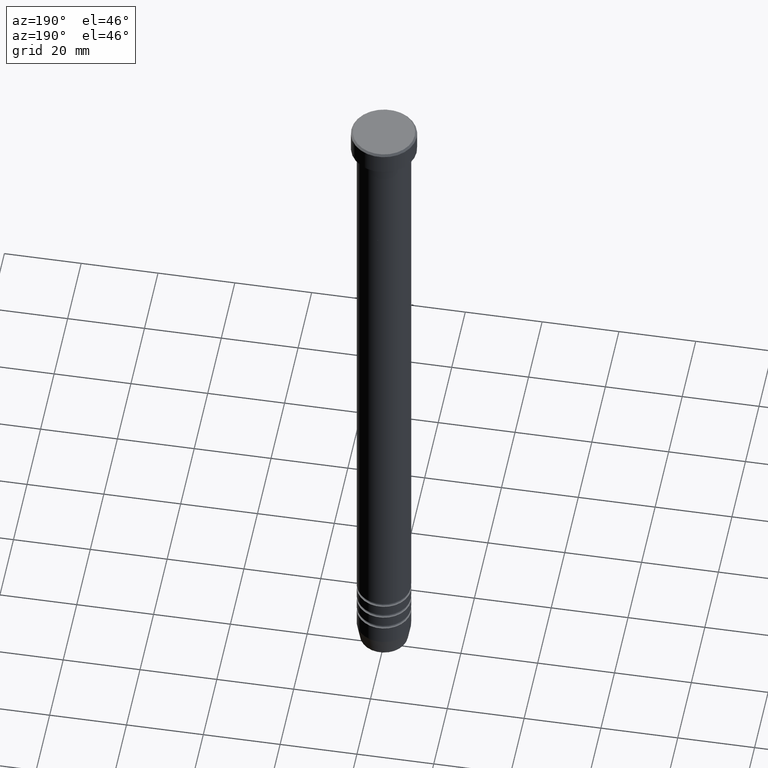
[diagram: clean part render]
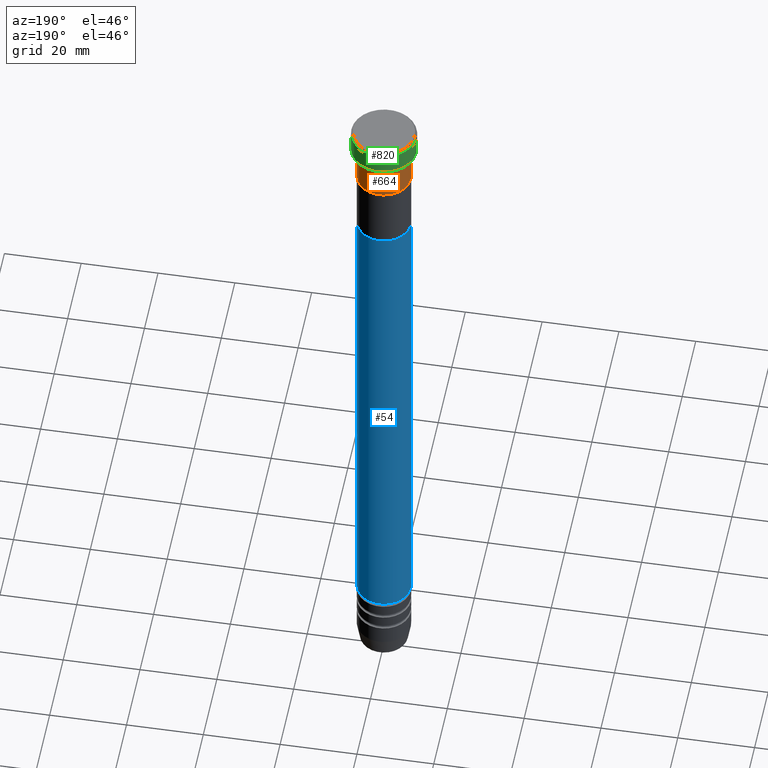
[diagram: same view with three faces highlighted in distinct colors, each labeled with its STEP entity id]
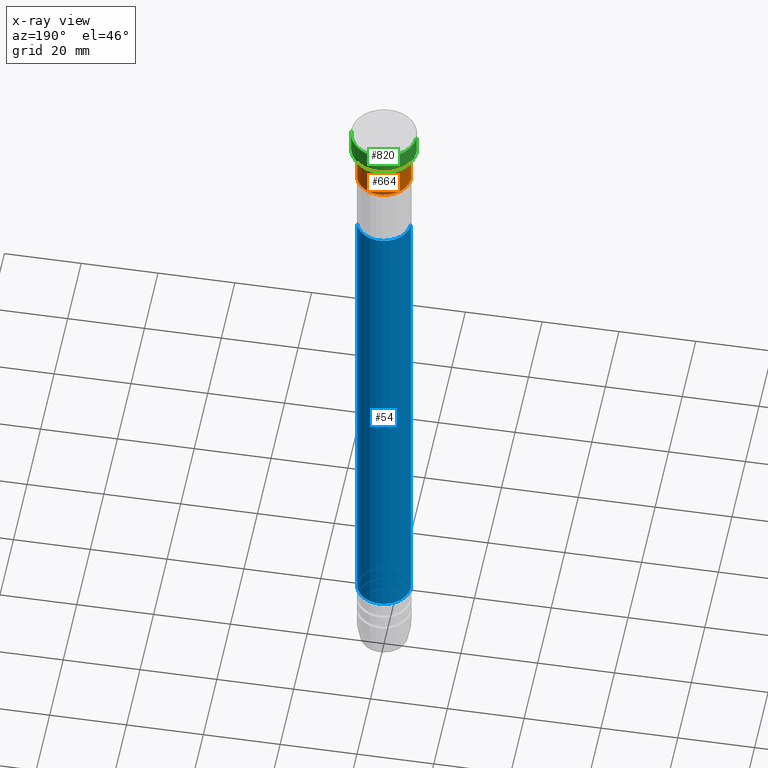
[diagram: x-ray of the same camera — body ghosted, the three highlighted faces saturated]
A machine part, auxiliary view with three faces highlighted in distinct colors.
The next image is the same camera in x-ray (body ghosted, the three faces saturated) — at least one of them is partly hidden behind the body in this view.
Their STEP definitions:

[orange] entity #664 — the highlighted cylindrical surface (edge-blend (fillet) strip) has radius 7 mm, axis along (-0, -0, 1).
#29 = AXIS2_PLACEMENT_3D ( 'NONE', #717, #143, #402 ) ;
#42 = CIRCLE ( 'NONE', #242, 7.000000000000000000 ) ;
#44 = EDGE_CURVE ( 'NONE', #896, #1146, #401, .T. ) ;
#55 = VECTOR ( 'NONE', #708, 1000.000000000000000 ) ;
#57 = CARTESIAN_POINT ( 'NONE',  ( 0.000000000000000000, 0.000000000000000000, -7.000000000000000888 ) ) ;
#143 = DIRECTION ( 'NONE',  ( -0.000000000000000000, -0.000000000000000000, 1.000000000000000000 ) ) ;
#153 = EDGE_CURVE ( 'NONE', #1024, #698, #42, .T. ) ;
#162 = AXIS2_PLACEMENT_3D ( 'NONE', #573, #246, #168 ) ;
#168 = DIRECTION ( 'NONE',  ( 1.000000000000000000, 0.000000000000000000, 0.000000000000000000 ) ) ;
#198 = DIRECTION ( 'NONE',  ( 1.000000000000000000, 0.000000000000000000, 0.000000000000000000 ) ) ;
#206 = CARTESIAN_POINT ( 'NONE',  ( 7.000000000000000000, 0.000000000000000000, -7.000000000000000888 ) ) ;
#219 = LINE ( 'NONE', #562, #408 ) ;
#223 = EDGE_CURVE ( 'NONE', #1146, #698, #366, .T. ) ;
#242 = AXIS2_PLACEMENT_3D ( 'NONE', #57, #352, #198 ) ;
#246 = DIRECTION ( 'NONE',  ( -0.000000000000000000, -0.000000000000000000, 1.000000000000000000 ) ) ;
#352 = DIRECTION ( 'NONE',  ( -0.000000000000000000, -0.000000000000000000, 1.000000000000000000 ) ) ;
#353 = ORIENTED_EDGE ( 'NONE', *, *, #884, .F. ) ;
#366 = LINE ( 'NONE', #429, #55 ) ;
#385 = CARTESIAN_POINT ( 'NONE',  ( 7.000000000000000000, 0.000000000000000000, -16.00000000000000000 ) ) ;
#401 = CIRCLE ( 'NONE', #29, 7.000000000000000000 ) ;
#402 = DIRECTION ( 'NONE',  ( 1.000000000000000000, 0.000000000000000000, 0.000000000000000000 ) ) ;
#408 = VECTOR ( 'NONE', #535, 1000.000000000000000 ) ;
#429 = CARTESIAN_POINT ( 'NONE',  ( -7.000000000000000000, 8.572527594031473190E-16, 0.000000000000000000 ) ) ;
#500 = ORIENTED_EDGE ( 'NONE', *, *, #44, .T. ) ;
#522 = EDGE_LOOP ( 'NONE', ( #500, #985, #955, #353 ) ) ;
#535 = DIRECTION ( 'NONE',  ( -0.000000000000000000, -0.000000000000000000, 1.000000000000000000 ) ) ;
#548 = CARTESIAN_POINT ( 'NONE',  ( -7.000000000000000000, 8.572527594031473190E-16, -16.00000000000000000 ) ) ;
#562 = CARTESIAN_POINT ( 'NONE',  ( 7.000000000000000000, 0.000000000000000000, 0.000000000000000000 ) ) ;
#573 = CARTESIAN_POINT ( 'NONE',  ( 0.000000000000000000, 0.000000000000000000, 0.000000000000000000 ) ) ;
#660 = CYLINDRICAL_SURFACE ( 'NONE', #162, 7.000000000000000000 ) ;
#664 = ADVANCED_FACE ( 'NONE', ( #677 ), #660, .T. ) ;
#677 = FACE_OUTER_BOUND ( 'NONE', #522, .T. ) ;
#698 = VERTEX_POINT ( 'NONE', #1057 ) ;
#708 = DIRECTION ( 'NONE',  ( -0.000000000000000000, -0.000000000000000000, 1.000000000000000000 ) ) ;
#717 = CARTESIAN_POINT ( 'NONE',  ( 0.000000000000000000, 0.000000000000000000, -16.00000000000000000 ) ) ;
#884 = EDGE_CURVE ( 'NONE', #896, #1024, #219, .T. ) ;
#896 = VERTEX_POINT ( 'NONE', #385 ) ;
#955 = ORIENTED_EDGE ( 'NONE', *, *, #153, .F. ) ;
#985 = ORIENTED_EDGE ( 'NONE', *, *, #223, .T. ) ;
#1024 = VERTEX_POINT ( 'NONE', #206 ) ;
#1057 = CARTESIAN_POINT ( 'NONE',  ( -7.000000000000000000, 8.572527594031473190E-16, -7.000000000000000888 ) ) ;
#1146 = VERTEX_POINT ( 'NONE', #548 ) ;

[blue] entity #54 — the highlighted cylindrical surface (edge-blend (fillet) strip) has radius 7 mm, axis along (-0, -0, 1).
#37 = VECTOR ( 'NONE', #733, 1000.000000000000000 ) ;
#53 = VERTEX_POINT ( 'NONE', #657 ) ;
#54 = ADVANCED_FACE ( 'NONE', ( #630 ), #398, .T. ) ;
#70 = AXIS2_PLACEMENT_3D ( 'NONE', #369, #438, #1145 ) ;
#108 = VERTEX_POINT ( 'NONE', #447 ) ;
#128 = DIRECTION ( 'NONE',  ( -0.000000000000000000, -0.000000000000000000, 1.000000000000000000 ) ) ;
#130 = DIRECTION ( 'NONE',  ( -0.000000000000000000, -0.000000000000000000, 1.000000000000000000 ) ) ;
#144 = ORIENTED_EDGE ( 'NONE', *, *, #1068, .F. ) ;
#155 = CARTESIAN_POINT ( 'NONE',  ( 7.000000000000000000, 0.000000000000000000, -33.00000000000000000 ) ) ;
#220 = ORIENTED_EDGE ( 'NONE', *, *, #625, .T. ) ;
#249 = CARTESIAN_POINT ( 'NONE',  ( -6.999999999999995559, 8.572527594031467273E-16, 0.000000000000000000 ) ) ;
#275 = LINE ( 'NONE', #621, #37 ) ;
#310 = DIRECTION ( 'NONE',  ( 1.000000000000000000, 0.000000000000000000, 0.000000000000000000 ) ) ;
#369 = CARTESIAN_POINT ( 'NONE',  ( 0.000000000000000000, 0.000000000000000000, -33.00000000000000000 ) ) ;
#398 = CYLINDRICAL_SURFACE ( 'NONE', #735, 6.999999999999995559 ) ;
#438 = DIRECTION ( 'NONE',  ( -0.000000000000000000, -0.000000000000000000, 1.000000000000000000 ) ) ;
#447 = CARTESIAN_POINT ( 'NONE',  ( 6.999999999999991118, 0.000000000000000000, -167.0000000000000000 ) ) ;
#460 = EDGE_LOOP ( 'NONE', ( #853, #220, #144, #1055 ) ) ;
#476 = DIRECTION ( 'NONE',  ( 1.000000000000000000, 0.000000000000000000, 0.000000000000000000 ) ) ;
#506 = DIRECTION ( 'NONE',  ( -0.000000000000000000, -0.000000000000000000, 1.000000000000000000 ) ) ;
#561 = EDGE_CURVE ( 'NONE', #108, #53, #860, .T. ) ;
#621 = CARTESIAN_POINT ( 'NONE',  ( 6.999999999999995559, 0.000000000000000000, 0.000000000000000000 ) ) ;
#625 = EDGE_CURVE ( 'NONE', #53, #1139, #681, .T. ) ;
#630 = FACE_OUTER_BOUND ( 'NONE', #460, .T. ) ;
#657 = CARTESIAN_POINT ( 'NONE',  ( -6.999999999999991118, 8.572527594031464315E-16, -167.0000000000000000 ) ) ;
#681 = LINE ( 'NONE', #249, #842 ) ;
#733 = DIRECTION ( 'NONE',  ( -0.000000000000000000, -0.000000000000000000, 1.000000000000000000 ) ) ;
#735 = AXIS2_PLACEMENT_3D ( 'NONE', #995, #130, #310 ) ;
#842 = VECTOR ( 'NONE', #506, 1000.000000000000000 ) ;
#853 = ORIENTED_EDGE ( 'NONE', *, *, #561, .T. ) ;
#860 = CIRCLE ( 'NONE', #1081, 6.999999999999991118 ) ;
#925 = VERTEX_POINT ( 'NONE', #155 ) ;
#978 = CARTESIAN_POINT ( 'NONE',  ( -7.000000000000000000, 8.572527594031473190E-16, -33.00000000000000000 ) ) ;
#981 = CARTESIAN_POINT ( 'NONE',  ( 0.000000000000000000, 0.000000000000000000, -167.0000000000000000 ) ) ;
#995 = CARTESIAN_POINT ( 'NONE',  ( 0.000000000000000000, 0.000000000000000000, 0.000000000000000000 ) ) ;
#1029 = EDGE_CURVE ( 'NONE', #108, #925, #275, .T. ) ;
#1055 = ORIENTED_EDGE ( 'NONE', *, *, #1029, .F. ) ;
#1068 = EDGE_CURVE ( 'NONE', #925, #1139, #1125, .T. ) ;
#1081 = AXIS2_PLACEMENT_3D ( 'NONE', #981, #128, #476 ) ;
#1125 = CIRCLE ( 'NONE', #70, 7.000000000000000000 ) ;
#1139 = VERTEX_POINT ( 'NONE', #978 ) ;
#1145 = DIRECTION ( 'NONE',  ( 1.000000000000000000, 0.000000000000000000, 0.000000000000000000 ) ) ;

[green] entity #820 — the highlighted cylindrical surface (edge-blend (fillet) strip) has radius 8.5 mm, axis along (-0, -0, 1).
#3 = CARTESIAN_POINT ( 'NONE',  ( 8.500000000000000000, 0.000000000000000000, -6.000000000000000000 ) ) ;
#19 = CARTESIAN_POINT ( 'NONE',  ( -8.500000000000000000, 1.040949779275250140E-15, 0.000000000000000000 ) ) ;
#72 = VERTEX_POINT ( 'NONE', #3 ) ;
#74 = VERTEX_POINT ( 'NONE', #663 ) ;
#78 = DIRECTION ( 'NONE',  ( -0.000000000000000000, -0.000000000000000000, 1.000000000000000000 ) ) ;
#125 = VECTOR ( 'NONE', #78, 1000.000000000000000 ) ;
#227 = CARTESIAN_POINT ( 'NONE',  ( 0.000000000000000000, 0.000000000000000000, -0.4999999999999952260 ) ) ;
#244 = EDGE_CURVE ( 'NONE', #72, #946, #268, .T. ) ;
#253 = ORIENTED_EDGE ( 'NONE', *, *, #501, .T. ) ;
#268 = LINE ( 'NONE', #856, #125 ) ;
#403 = EDGE_CURVE ( 'NONE', #616, #74, #892, .T. ) ;
#421 = ORIENTED_EDGE ( 'NONE', *, *, #403, .T. ) ;
#435 = DIRECTION ( 'NONE',  ( -0.000000000000000000, -0.000000000000000000, 1.000000000000000000 ) ) ;
#440 = AXIS2_PLACEMENT_3D ( 'NONE', #627, #721, #1070 ) ;
#497 = CARTESIAN_POINT ( 'NONE',  ( -8.500000000000000000, 1.040949779275250140E-15, -6.000000000000000000 ) ) ;
#501 = EDGE_CURVE ( 'NONE', #72, #616, #956, .T. ) ;
#551 = DIRECTION ( 'NONE',  ( 1.000000000000000000, 0.000000000000000000, 0.000000000000000000 ) ) ;
#568 = VECTOR ( 'NONE', #731, 1000.000000000000000 ) ;
#569 = DIRECTION ( 'NONE',  ( 0.000000000000000000, 0.000000000000000000, -1.000000000000000000 ) ) ;
#579 = EDGE_CURVE ( 'NONE', #74, #946, #1000, .T. ) ;
#611 = EDGE_LOOP ( 'NONE', ( #253, #421, #777, #1127 ) ) ;
#616 = VERTEX_POINT ( 'NONE', #497 ) ;
#627 = CARTESIAN_POINT ( 'NONE',  ( 0.000000000000000000, 0.000000000000000000, 0.000000000000000000 ) ) ;
#663 = CARTESIAN_POINT ( 'NONE',  ( -8.500000000000000000, 1.040949779275250140E-15, -0.4999999999999952260 ) ) ;
#721 = DIRECTION ( 'NONE',  ( -0.000000000000000000, -0.000000000000000000, 1.000000000000000000 ) ) ;
#730 = AXIS2_PLACEMENT_3D ( 'NONE', #861, #435, #784 ) ;
#731 = DIRECTION ( 'NONE',  ( -0.000000000000000000, -0.000000000000000000, 1.000000000000000000 ) ) ;
#739 = FACE_OUTER_BOUND ( 'NONE', #611, .T. ) ;
#754 = CARTESIAN_POINT ( 'NONE',  ( 8.500000000000000000, 0.000000000000000000, -0.4999999999999952260 ) ) ;
#777 = ORIENTED_EDGE ( 'NONE', *, *, #579, .T. ) ;
#784 = DIRECTION ( 'NONE',  ( 1.000000000000000000, 0.000000000000000000, 0.000000000000000000 ) ) ;
#820 = ADVANCED_FACE ( 'NONE', ( #739 ), #1092, .T. ) ;
#829 = AXIS2_PLACEMENT_3D ( 'NONE', #227, #569, #551 ) ;
#856 = CARTESIAN_POINT ( 'NONE',  ( 8.500000000000000000, 0.000000000000000000, 0.000000000000000000 ) ) ;
#861 = CARTESIAN_POINT ( 'NONE',  ( 0.000000000000000000, 0.000000000000000000, -6.000000000000000000 ) ) ;
#892 = LINE ( 'NONE', #19, #568 ) ;
#946 = VERTEX_POINT ( 'NONE', #754 ) ;
#956 = CIRCLE ( 'NONE', #730, 8.500000000000000000 ) ;
#1000 = CIRCLE ( 'NONE', #829, 8.500000000000000000 ) ;
#1070 = DIRECTION ( 'NONE',  ( 1.000000000000000000, 0.000000000000000000, 0.000000000000000000 ) ) ;
#1092 = CYLINDRICAL_SURFACE ( 'NONE', #440, 8.500000000000000000 ) ;
#1127 = ORIENTED_EDGE ( 'NONE', *, *, #244, .F. ) ;